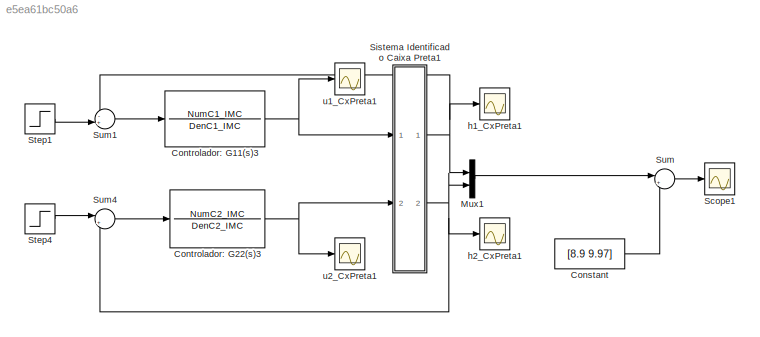
MODEL slx_e5ea61bc50a6
KIND model
BLOCK [Constant] Constant
  Value = [8.9 9.97]
BLOCK [TransferFcn] Controlador: G11(s)3
  Denominator = DenC1_IMC
  Numerator = NumC1_IMC
BLOCK [TransferFcn] Controlador: G22(s)3
  Denominator = DenC2_IMC
  Numerator = NumC2_IMC
BLOCK [Mux] Mux1
  DisplayOption = bar
  Inputs = 2
  Ports = [2, 1]
BLOCK [Scope] Scope1
  DataFormat = StructureWithTime
  Floating = off
  NumInputPorts = 1
  Ports = [1]
  SampleTime = 0
  SaveName = Simulado
  SaveToWorkspace = on
  ShowLegends = off
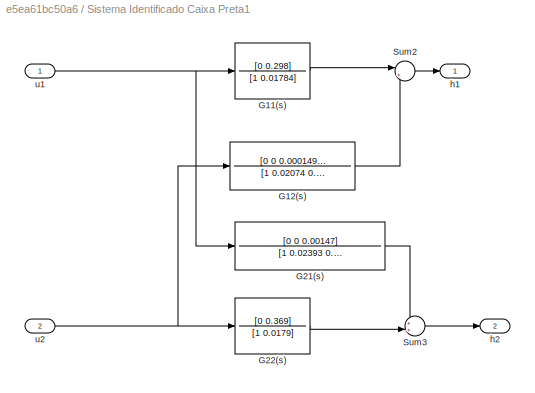
BLOCK [SubSystem] Sistema Identificado Caixa Preta1
  Ports = [2, 2]
  RequestExecContextInheritance = off
BLOCK [TransferFcn] Sistema Identificado Caixa Preta1/G11(s)
  Denominator = [1 0.01784]
  Numerator = [0 0.298]
BLOCK [TransferFcn] Sistema Identificado Caixa Preta1/G12(s)
  Denominator = [1 0.02074 0.00005165]
  Numerator = [0 0 0.0001495]
BLOCK [TransferFcn] Sistema Identificado Caixa Preta1/G21(s)
  Denominator = [1 0.02393 0.0001079]
  Numerator = [0 0 0.00147]
BLOCK [TransferFcn] Sistema Identificado Caixa Preta1/G22(s)
  Denominator = [1 0.0179]
  Numerator = [0 0.369]
BLOCK [Sum] Sistema Identificado Caixa Preta1/Sum2
  IconShape = round
  InputSameDT = off
  Inputs = |++
  OutDataTypeStr = Inherit: Inherit via internal rule
  Ports = [2, 1]
  SaturateOnIntegerOverflow = off
BLOCK [Sum] Sistema Identificado Caixa Preta1/Sum3
  IconShape = round
  InputSameDT = off
  Inputs = ++|
  OutDataTypeStr = Inherit: Inherit via internal rule
  Ports = [2, 1]
  SaturateOnIntegerOverflow = off
BLOCK [Outport] Sistema Identificado Caixa Preta1/h1
  IconDisplay = Port number
BLOCK [Outport] Sistema Identificado Caixa Preta1/h2
  IconDisplay = Port number
  Port = 2
BLOCK [Inport] Sistema Identificado Caixa Preta1/u1
  IconDisplay = Port number
BLOCK [Inport] Sistema Identificado Caixa Preta1/u2
  IconDisplay = Port number
  Port = 2
BLOCK [Step] Step1
  SampleTime = 0
  Time = 200
BLOCK [Step] Step4
  SampleTime = 0
  Time = 500
BLOCK [Sum] Sum
  IconShape = round
  InputSameDT = off
  Inputs = |++
  OutDataTypeStr = Inherit: Inherit via internal rule
  Ports = [2, 1]
  SaturateOnIntegerOverflow = off
BLOCK [Sum] Sum1
  IconShape = round
  InputSameDT = off
  Inputs = -+|
  OutDataTypeStr = Inherit: Inherit via internal rule
  Ports = [2, 1]
  SaturateOnIntegerOverflow = off
BLOCK [Sum] Sum4
  IconShape = round
  InputSameDT = off
  Inputs = |+-
  OutDataTypeStr = Inherit: Inherit via internal rule
  Ports = [2, 1]
  SaturateOnIntegerOverflow = off
BLOCK [Scope] h1_CxPreta1
  DataFormat = StructureWithTime
  Floating = off
  NumInputPorts = 1
  Ports = [1]
  SampleTime = 0
  SaveName = ScopeData6
  ShowLegends = off
BLOCK [Scope] h2_CxPreta1
  DataFormat = StructureWithTime
  Floating = off
  NumInputPorts = 1
  Ports = [1]
  SampleTime = 0
  SaveName = ScopeData7
  ShowLegends = off
  ZoomMode = yonly
BLOCK [Scope] u1_CxPreta1
  DataFormat = StructureWithTime
  Floating = off
  NumInputPorts = 1
  Ports = [1]
  SampleTime = 0
  SaveName = ScopeData8
  ShowLegends = off
  ZoomMode = yonly
BLOCK [Scope] u2_CxPreta1
  DataFormat = StructureWithTime
  Floating = off
  NumInputPorts = 1
  Ports = [1]
  SampleTime = 0
  SaveName = ScopeData9
  ShowLegends = off
  ZoomMode = yonly
LINE Constant:1 -> Sum:2
NET Controlador: G11(s)3:1 -> Sistema Identificado Caixa Preta1:1, u1_CxPreta1:1
NET Controlador: G22(s)3:1 -> Sistema Identificado Caixa Preta1:2, u2_CxPreta1:1
LINE Mux1:1 -> Sum:1
LINE Sistema Identificado Caixa Preta1/G11(s):1 -> Sistema Identificado Caixa Preta1/Sum2:1
LINE Sistema Identificado Caixa Preta1/G12(s):1 -> Sistema Identificado Caixa Preta1/Sum2:2
LINE Sistema Identificado Caixa Preta1/G21(s):1 -> Sistema Identificado Caixa Preta1/Sum3:1
LINE Sistema Identificado Caixa Preta1/G22(s):1 -> Sistema Identificado Caixa Preta1/Sum3:2
LINE Sistema Identificado Caixa Preta1/Sum2:1 -> Sistema Identificado Caixa Preta1/h1:1
LINE Sistema Identificado Caixa Preta1/Sum3:1 -> Sistema Identificado Caixa Preta1/h2:1
NET Sistema Identificado Caixa Preta1/u1:1 -> Sistema Identificado Caixa Preta1/G11(s):1, Sistema Identificado Caixa Preta1/G21(s):1
NET Sistema Identificado Caixa Preta1/u2:1 -> Sistema Identificado Caixa Preta1/G12(s):1, Sistema Identificado Caixa Preta1/G22(s):1
NET Sistema Identificado Caixa Preta1:1 -> Mux1:1, Sum1:1, h1_CxPreta1:1
NET Sistema Identificado Caixa Preta1:2 -> Mux1:2, Sum4:2, h2_CxPreta1:1
LINE Step1:1 -> Sum1:2
LINE Step4:1 -> Sum4:1
LINE Sum1:1 -> Controlador: G11(s)3:1
LINE Sum4:1 -> Controlador: G22(s)3:1
LINE Sum:1 -> Scope1:1
note: NET lines group one-source signal fan-out (src -> all destinations, sorted); 1:1 wires keep LINE
